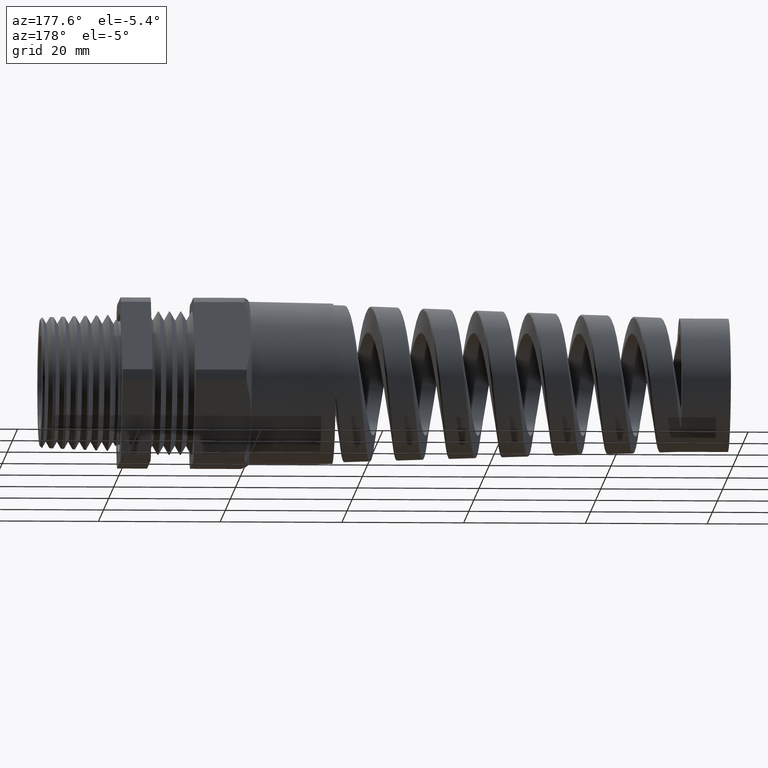
[diagram: clean part render]
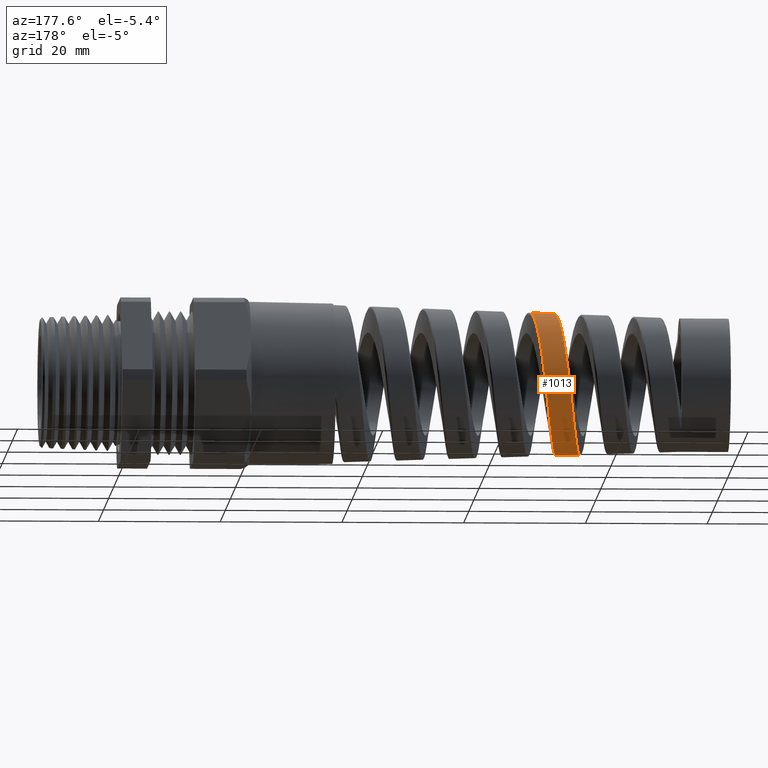
[diagram: same view with one face highlighted and labeled with its STEP entity id]
A machine part, auxiliary view. The second image highlights one B-rep face of the part: STEP entity #1013.
In plain terms, the highlighted conical surface has half-angle 2.001 deg.
Its self-contained STEP definition (entity closure, byte-faithful):
#985 = EDGE_CURVE ( 'NONE', #1009, #986, #10869, .T. ) ;
#986 = VERTEX_POINT ( 'NONE', #10865 ) ;
#990 = VERTEX_POINT ( 'NONE', #10860 ) ;
#992 = ORIENTED_EDGE ( 'NONE', *, *, #985, .F. ) ;
#997 = EDGE_CURVE ( 'NONE', #990, #986, #10852, .T. ) ;
#999 = EDGE_CURVE ( 'NONE', #1011, #990, #8245, .T. ) ;
#1008 = ORIENTED_EDGE ( 'NONE', *, *, #1010, .T. ) ;
#1009 = VERTEX_POINT ( 'NONE', #8228 ) ;
#1010 = EDGE_CURVE ( 'NONE', #1009, #1011, #8407, .T. ) ;
#1011 = VERTEX_POINT ( 'NONE', #8408 ) ;
#1012 = ORIENTED_EDGE ( 'NONE', *, *, #999, .T. ) ;
#1013 = ADVANCED_FACE ( 'NONE', ( #8409 ), #8354, .T. ) ;
#1018 = EDGE_LOOP ( 'NONE', ( #1008, #1012, #1068, #992 ) ) ;
#1068 = ORIENTED_EDGE ( 'NONE', *, *, #997, .T. ) ;
#8228 = CARTESIAN_POINT ( 'NONE',  ( -2.977747145506434400, -8.587073178097896600E-015, -0.4552381096315953900 ) ) ;
#8242 = DIRECTION ( 'NONE',  ( 0.9993904554178625300, 4.275258673359080400E-018, 0.03491013634572581700 ) ) ;
#8243 = VECTOR ( 'NONE', #8242, 39.37007874015748900 ) ;
#8244 = CARTESIAN_POINT ( 'NONE',  ( -0.8375000000000000200, 6.490628035480970000E-017, 0.5299999999999999200 ) ) ;
#8245 = LINE ( 'NONE', #8244, #8243 ) ;
#8350 = DIRECTION ( 'NONE',  ( 0.0000000000000000000, 0.0000000000000000000, -1.000000000000000000 ) ) ;
#8351 = DIRECTION ( 'NONE',  ( 1.000000000000000000, 0.0000000000000000000, 0.0000000000000000000 ) ) ;
#8352 = CARTESIAN_POINT ( 'NONE',  ( -0.8375000000000000200, 0.0000000000000000000, 0.0000000000000000000 ) ) ;
#8353 = AXIS2_PLACEMENT_3D ( 'NONE', #8352, #8351, #8350 ) ;
#8354 = CONICAL_SURFACE ( 'NONE', #8353, 0.5299999999999999200, 0.03491723117042447300 ) ;
#8355 = CARTESIAN_POINT ( 'NONE',  ( -2.807587699846667600, 9.897044900491094100E-013, 0.4611820221597691700 ) ) ;
#8356 = CARTESIAN_POINT ( 'NONE',  ( -2.809346601758278400, 0.01497915561514002100, 0.4611205812031818900 ) ) ;
#8357 = CARTESIAN_POINT ( 'NONE',  ( -2.811120633399506000, 0.03007889090123779000, 0.4603241051761341500 ) ) ;
#8358 = CARTESIAN_POINT ( 'NONE',  ( -2.814669256446269900, 0.06011979089903458200, 0.4572464798655301300 ) ) ;
#8359 = CARTESIAN_POINT ( 'NONE',  ( -2.816431006760149500, 0.07495208861649212100, 0.4549830709746715000 ) ) ;
#8360 = CARTESIAN_POINT ( 'NONE',  ( -2.821702221805026100, 0.1188986533592297600, 0.4460840565519583200 ) ) ;
#8361 = CARTESIAN_POINT ( 'NONE',  ( -2.825196039310534400, 0.1474678714859323500, 0.4373590792498969200 ) ) ;
#8362 = CARTESIAN_POINT ( 'NONE',  ( -2.830511993323190400, 0.1891896462039551500, 0.4199822921878118000 ) ) ;
#8363 = CARTESIAN_POINT ( 'NONE',  ( -2.832295631632296500, 0.2028946275148867700, 0.4134637884891541600 ) ) ;
#8364 = CARTESIAN_POINT ( 'NONE',  ( -2.835826993234683800, 0.2293245499800137800, 0.3992683740396794600 ) ) ;
#8365 = CARTESIAN_POINT ( 'NONE',  ( -2.837584561749892500, 0.2421279055383892300, 0.3915612851173876900 ) ) ;
#8366 = CARTESIAN_POINT ( 'NONE',  ( -2.841098248557750900, 0.2669223306272908700, 0.3749475898418951300 ) ) ;
#8367 = CARTESIAN_POINT ( 'NONE',  ( -2.842854475306031400, 0.2789133795268012300, 0.3660409759076038200 ) ) ;
#8368 = CARTESIAN_POINT ( 'NONE',  ( -2.846383451231263800, 0.3020707943782485700, 0.3470137196235533700 ) ) ;
#8369 = CARTESIAN_POINT ( 'NONE',  ( -2.848164807618566800, 0.3132882955536374100, 0.3368405304364334200 ) ) ;
#8370 = CARTESIAN_POINT ( 'NONE',  ( -2.853497471108915800, 0.3452695149298541400, 0.3048140861651430500 ) ) ;
#8371 = CARTESIAN_POINT ( 'NONE',  ( -2.857004966045945800, 0.3642008041812374600, 0.2816914425226670900 ) ) ;
#8372 = CARTESIAN_POINT ( 'NONE',  ( -2.862288846226615800, 0.3891083458457798600, 0.2444338862460441200 ) ) ;
#8373 = CARTESIAN_POINT ( 'NONE',  ( -2.864054063758583200, 0.3968251651576318900, 0.2315827418513596000 ) ) ;
#8374 = CARTESIAN_POINT ( 'NONE',  ( -2.867610636634114800, 0.4110526980249489800, 0.2049935902136545400 ) ) ;
#8375 = CARTESIAN_POINT ( 'NONE',  ( -2.869396729970043100, 0.4175336863265010100, 0.1912914139419057400 ) ) ;
#8376 = CARTESIAN_POINT ( 'NONE',  ( -2.874704610334298600, 0.4347496892970076400, 0.1497446892410241300 ) ) ;
#8377 = CARTESIAN_POINT ( 'NONE',  ( -2.878212969913586800, 0.4434323223535625600, 0.1211885196045192900 ) ) ;
#8378 = CARTESIAN_POINT ( 'NONE',  ( -2.883525021676692600, 0.4522537894000597800, 0.07707531282642574000 ) ) ;
#8379 = CARTESIAN_POINT ( 'NONE',  ( -2.885314131230840600, 0.4544952262473697100, 0.06207365039712470200 ) ) ;
#8380 = CARTESIAN_POINT ( 'NONE',  ( -2.888874987908657500, 0.4574668922665755500, 0.03207885824325305800 ) ) ;
#8381 = CARTESIAN_POINT ( 'NONE',  ( -2.890643836985770800, 0.4582046660307601000, 0.01711195705685795600 ) ) ;
#8382 = CARTESIAN_POINT ( 'NONE',  ( -2.895941448534137500, 0.4582323761469147500, -0.02769668917852967400 ) ) ;
#8383 = CARTESIAN_POINT ( 'NONE',  ( -2.899459527227601800, 0.4553574706347400800, -0.05744746965020108800 ) ) ;
#8384 = CARTESIAN_POINT ( 'NONE',  ( -2.904815667116713100, 0.4465618519091511000, -0.1018732314056459300 ) ) ;
#8385 = CARTESIAN_POINT ( 'NONE',  ( -2.906602691578088900, 0.4428905270084836400, -0.1165459778804394200 ) ) ;
#8386 = CARTESIAN_POINT ( 'NONE',  ( -2.910148033867895100, 0.4342043615896856700, -0.1452177645477525100 ) ) ;
#8387 = CARTESIAN_POINT ( 'NONE',  ( -2.911913917995283500, 0.4291775873737978500, -0.1592799214095715300 ) ) ;
#8388 = CARTESIAN_POINT ( 'NONE',  ( -2.915448497330072300, 0.4177721175762765800, -0.1868608718560379700 ) ) ;
#8389 = CARTESIAN_POINT ( 'NONE',  ( -2.917217080038625900, 0.4113934433197383200, -0.2003796884281451300 ) ) ;
#8390 = CARTESIAN_POINT ( 'NONE',  ( -2.920772226515019100, 0.3972610172632508000, -0.2268627127855817000 ) ) ;
#8391 = CARTESIAN_POINT ( 'NONE',  ( -2.922568891481762200, 0.3894581189286710500, -0.2398943149915433200 ) ) ;
#8392 = CARTESIAN_POINT ( 'NONE',  ( -2.927918150108455000, 0.3643679673997363700, -0.2774378196900657600 ) ) ;
#8393 = CARTESIAN_POINT ( 'NONE',  ( -2.931441352696272200, 0.3454067695303203500, -0.3005087991951140300 ) ) ;
#8394 = CARTESIAN_POINT ( 'NONE',  ( -2.936762356485870500, 0.3136841155768220200, -0.3322245129664479500 ) ) ;
#8395 = CARTESIAN_POINT ( 'NONE',  ( -2.938541491657325400, 0.3025592197418395800, -0.3423113131739319900 ) ) ;
#8396 = CARTESIAN_POINT ( 'NONE',  ( -2.942128267532051000, 0.2791718122572083800, -0.3614800321989722900 ) ) ;
#8397 = CARTESIAN_POINT ( 'NONE',  ( -2.943913966623823900, 0.2670524695780639400, -0.3704404763694400000 ) ) ;
#8398 = CARTESIAN_POINT ( 'NONE',  ( -2.949241948461288400, 0.2296858068663858700, -0.3953349590828900700 ) ) ;
#8399 = CARTESIAN_POINT ( 'NONE',  ( -2.952770406052708500, 0.2033435664826060400, -0.4093793857638865500 ) ) ;
#8400 = CARTESIAN_POINT ( 'NONE',  ( -2.958126138499455000, 0.1616661445351458600, -0.4265631266166352000 ) ) ;
#8401 = CARTESIAN_POINT ( 'NONE',  ( -2.959929321008119000, 0.1473447282009798500, -0.4316529341814698300 ) ) ;
#8402 = CARTESIAN_POINT ( 'NONE',  ( -2.963500640003532200, 0.1185544047986514900, -0.4403020041086906400 ) ) ;
#8403 = CARTESIAN_POINT ( 'NONE',  ( -2.965276065797971300, 0.1040310859948490300, -0.4438906057780847600 ) ) ;
#8404 = CARTESIAN_POINT ( 'NONE',  ( -2.970598744375005000, 0.06008756601474356900, -0.4524928089040007900 ) ) ;
#8405 = CARTESIAN_POINT ( 'NONE',  ( -2.974148625282253100, 0.03024632388692357800, -0.4553638110839040600 ) ) ;
#8406 = CARTESIAN_POINT ( 'NONE',  ( -2.977747145506434400, -8.587073178097896600E-015, -0.4552381096315953900 ) ) ;
#8407 = B_SPLINE_CURVE_WITH_KNOTS ( 'NONE', 3,
 ( #8406, #8405, #8404, #8403, #8402, #8401, #8400, #8399, #8398, #8397, #8396, #8395, #8394, #8393, #8392, #8391, #8390, #8389, #8388, #8387, #8386, #8385, #8384, #8383, #8382, #8381, #8380, #8379, #8378, #8377, #8376, #8375, #8374, #8373, #8372, #8371, #8370, #8369, #8368, #8367, #8366, #8365, #8364, #8363, #8362, #8361, #8360, #8359, #8358, #8357, #8356, #8355 ),
 .UNSPECIFIED., .F., .F.,
 ( 4, 2, 2, 2, 2, 2, 2, 2, 2, 2, 2, 2, 2, 2, 2, 2, 2, 2, 2, 2, 2, 2, 2, 2, 2, 4 ),
 ( 0.1369529869853773900, 0.1392757480518909400, 0.1404371285851477300, 0.1415985091184044900, 0.1439212701849180400, 0.1450826507181748000, 0.1462440312514315900, 0.1485667923179451200, 0.1497281728512019100, 0.1508895533844586700, 0.1520509339177154300, 0.1532123144509722200, 0.1555350755174857700, 0.1566964560507425300, 0.1578578365839993200, 0.1601805976505128500, 0.1613419781837696400, 0.1625033587170264000, 0.1648261197835399500, 0.1659875003167967100, 0.1671488808500534700, 0.1683102613833102600, 0.1694716419165670500, 0.1717944029830805700, 0.1729557835163373600, 0.1741171640495941300 ),
 .UNSPECIFIED. ) ;
#8408 = CARTESIAN_POINT ( 'NONE',  ( -2.807587699846667600, 9.897044900491094100E-013, 0.4611820221597691700 ) ) ;
#8409 = FACE_OUTER_BOUND ( 'NONE', #1018, .T. ) ;
#10842 = CARTESIAN_POINT ( 'NONE',  ( -2.681107699103307600, 0.2447856264705076400, 0.3963540069549337200 ) ) ;
#10843 = CARTESIAN_POINT ( 'NONE',  ( -2.679325992379159200, 0.2316355223634377100, 0.4042482198727755400 ) ) ;
#10844 = CARTESIAN_POINT ( 'NONE',  ( -2.675797010187607400, 0.2048884662799891600, 0.4185775635442546300 ) ) ;
#10845 = CARTESIAN_POINT ( 'NONE',  ( -2.672284219294968700, 0.1775654681923322700, 0.4315372992286366500 ) ) ;
#10846 = CARTESIAN_POINT ( 'NONE',  ( -2.668770598059857900, 0.1491098147502833100, 0.4417936675309225800 ) ) ;
#10847 = CARTESIAN_POINT ( 'NONE',  ( -2.665241452038115400, 0.1200812785849443400, 0.4506781402788568300 ) ) ;
#10848 = CARTESIAN_POINT ( 'NONE',  ( -2.663459779600426900, 0.1051981702933735000, 0.4544490834232169400 ) ) ;
#10849 = CARTESIAN_POINT ( 'NONE',  ( -2.658144300502353700, 0.06033673479046022800, 0.4634882333097917200 ) ) ;
#10850 = CARTESIAN_POINT ( 'NONE',  ( -2.654649876431260500, 0.03025117521397003100, 0.4665243588200556600 ) ) ;
#10851 = CARTESIAN_POINT ( 'NONE',  ( -2.651136986285957100, -1.065000265075521300E-012, 0.4666470690913079300 ) ) ;
#10852 = B_SPLINE_CURVE_WITH_KNOTS ( 'NONE', 3,
 ( #10851, #10850, #10849, #10848, #10847, #10846, #10845, #10844, #10843, #10842, #10916, #10915, #10914, #10913, #10912, #10911, #10910, #10909, #10908, #10907, #10906, #10905, #10904, #10903, #10902, #10901, #10900, #10899, #10898, #10897, #10896, #10895, #10894, #10893, #10892, #10891, #10890, #10889, #10888, #10887, #10886, #10885, #10884, #10883, #10882, #10881, #10880 ),
 .UNSPECIFIED., .F., .F.,
 ( 4, 2, 2, 1, 2, 2, 2, 2, 2, 2, 2, 2, 2, 2, 2, 2, 2, 2, 2, 2, 2, 2, 2, 4 ),
 ( 0.2939309755955319400, 0.2962672085865594200, 0.2974353250820732100, 0.2986034415775869500, 0.2997715580731006900, 0.3009396745686144200, 0.3032759075596419600, 0.3044440240551556900, 0.3056121405506694900, 0.3079483735416969600, 0.3091164900372107600, 0.3102846065327244900, 0.3126208395237520300, 0.3137889560192657600, 0.3149570725147795600, 0.3161251890102932900, 0.3172933055058070300, 0.3196295384968345600, 0.3219657714878621000, 0.3243020044788895700, 0.3254701209744033100, 0.3266382374699171000, 0.3289744704609445800, 0.3313107034519721100 ),
 .UNSPECIFIED. ) ;
#10860 = CARTESIAN_POINT ( 'NONE',  ( -2.651136986285957100, -1.065000265075521300E-012, 0.4666470690913079300 ) ) ;
#10865 = CARTESIAN_POINT ( 'NONE',  ( -2.821329196497247800, 7.633523803151827000E-015, -0.4607020120505416200 ) ) ;
#10866 = DIRECTION ( 'NONE',  ( 0.9993904554178625300, 0.0000000000000000000, -0.03491013634572581700 ) ) ;
#10867 = VECTOR ( 'NONE', #10866, 39.37007874015748900 ) ;
#10868 = CARTESIAN_POINT ( 'NONE',  ( -0.8375000000000000200, 0.0000000000000000000, -0.5299999999999999200 ) ) ;
#10869 = LINE ( 'NONE', #10868, #10867 ) ;
#10880 = CARTESIAN_POINT ( 'NONE',  ( -2.821329196497247800, 7.633523803151827000E-015, -0.4607020120505416200 ) ) ;
#10881 = CARTESIAN_POINT ( 'NONE',  ( -2.817775717912558000, 0.03022471855363440300, -0.4608261401340351100 ) ) ;
#10882 = CARTESIAN_POINT ( 'NONE',  ( -2.814236676881193500, 0.06036150778017804200, -0.4580042832668045900 ) ) ;
#10883 = CARTESIAN_POINT ( 'NONE',  ( -2.807043182507634500, 0.1204355016822792300, -0.4462493049986540100 ) ) ;
#10884 = CARTESIAN_POINT ( 'NONE',  ( -2.803493341009937600, 0.1495020400451274000, -0.4374732060263772900 ) ) ;
#10885 = CARTESIAN_POINT ( 'NONE',  ( -2.798174069534499400, 0.1914095276747284900, -0.4202176558134047600 ) ) ;
#10886 = CARTESIAN_POINT ( 'NONE',  ( -2.796399652168123600, 0.2051110481584494100, -0.4137756586002741500 ) ) ;
#10887 = CARTESIAN_POINT ( 'NONE',  ( -2.792830041938529900, 0.2319660292439701700, -0.3994843214052573000 ) ) ;
#10888 = CARTESIAN_POINT ( 'NONE',  ( -2.791027040762094700, 0.2451717099013038200, -0.3915929432959241500 ) ) ;
#10889 = CARTESIAN_POINT ( 'NONE',  ( -2.785671942206876700, 0.2831403121702272800, -0.3662688235658603200 ) ) ;
#10890 = CARTESIAN_POINT ( 'NONE',  ( -2.782145865534231300, 0.3065035530143251900, -0.3471060517170225200 ) ) ;
#10891 = CARTESIAN_POINT ( 'NONE',  ( -2.775046410082066700, 0.3493733709757954100, -0.3042934931250419500 ) ) ;
#10892 = CARTESIAN_POINT ( 'NONE',  ( -2.771444325056543700, 0.3689696744300928200, -0.2804153687903438400 ) ) ;
#10893 = CARTESIAN_POINT ( 'NONE',  ( -2.764351385850008400, 0.4025839754110159300, -0.2300581673707971800 ) ) ;
#10894 = CARTESIAN_POINT ( 'NONE',  ( -2.760831156137601500, 0.4168361562995807600, -0.2034048440762968600 ) ) ;
#10895 = CARTESIAN_POINT ( 'NONE',  ( -2.755485288598787300, 0.4343070570500414100, -0.1611838767890475500 ) ) ;
#10896 = CARTESIAN_POINT ( 'NONE',  ( -2.753688517532615300, 0.4394753408572997800, -0.1467014464846369000 ) ) ;
#10897 = CARTESIAN_POINT ( 'NONE',  ( -2.750133165613881200, 0.4482662471927123500, -0.1176107816916547900 ) ) ;
#10898 = CARTESIAN_POINT ( 'NONE',  ( -2.748364953682158200, 0.4519240117955485900, -0.1029276894106290100 ) ) ;
#10899 = CARTESIAN_POINT ( 'NONE',  ( -2.744831703573807700, 0.4577903076929787400, -0.07329270961383453600 ) ) ;
#10900 = CARTESIAN_POINT ( 'NONE',  ( -2.743067082474747400, 0.4599988041330230200, -0.05834076580882301800 ) ) ;
#10901 = CARTESIAN_POINT ( 'NONE',  ( -2.739524417019960600, 0.4629512586180731200, -0.02816723133515565800 ) ) ;
#10902 = CARTESIAN_POINT ( 'NONE',  ( -2.737739405151961700, 0.4636947744461155700, -0.01288667504495349600 ) ) ;
#10903 = CARTESIAN_POINT ( 'NONE',  ( -2.732382769755676800, 0.4636447295896710100, 0.03296785929564796000 ) ) ;
#10904 = CARTESIAN_POINT ( 'NONE',  ( -2.728864505339518000, 0.4606177623052932200, 0.06307251293181599700 ) ) ;
#10905 = CARTESIAN_POINT ( 'NONE',  ( -2.723569907727129800, 0.4517379959420126400, 0.1075442730740129900 ) ) ;
#10906 = CARTESIAN_POINT ( 'NONE',  ( -2.721802628853336300, 0.4480496340461506100, 0.1222532217207288200 ) ) ;
#10907 = CARTESIAN_POINT ( 'NONE',  ( -2.718244626578114600, 0.4391784965324100900, 0.1514330555820800600 ) ) ;
#10908 = CARTESIAN_POINT ( 'NONE',  ( -2.716455257523911800, 0.4339890716012656500, 0.1658890957295396900 ) ) ;
#10909 = CARTESIAN_POINT ( 'NONE',  ( -2.711142772114167900, 0.4165173645938873300, 0.2079490175863150900 ) ) ;
#10910 = CARTESIAN_POINT ( 'NONE',  ( -2.707634982552206400, 0.4022595587940741000, 0.2345830233445174200 ) ) ;
#10911 = CARTESIAN_POINT ( 'NONE',  ( -2.702331238526186000, 0.3769749011012149500, 0.2724219673963732500 ) ) ;
#10912 = CARTESIAN_POINT ( 'NONE',  ( -2.700547223018559000, 0.3678428942734868200, 0.2847390283463620600 ) ) ;
#10913 = CARTESIAN_POINT ( 'NONE',  ( -2.696990650947462200, 0.3484658717916932500, 0.3083371219474365700 ) ) ;
#10914 = CARTESIAN_POINT ( 'NONE',  ( -2.695225263234659200, 0.3382673109621735000, 0.3195753902092314800 ) ) ;
#10915 = CARTESIAN_POINT ( 'NONE',  ( -2.689941316779704800, 0.3061872260222497900, 0.3516537428658192400 ) ) ;
#10916 = CARTESIAN_POINT ( 'NONE',  ( -2.686435485878381000, 0.2828350924374927700, 0.3708726898055356200 ) ) ;